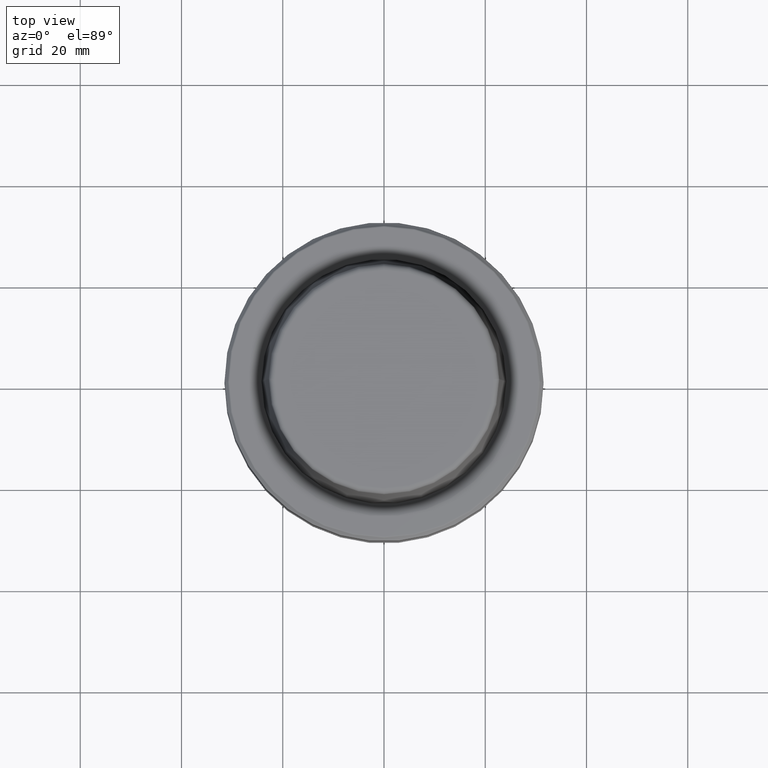
[diagram: clean part render]
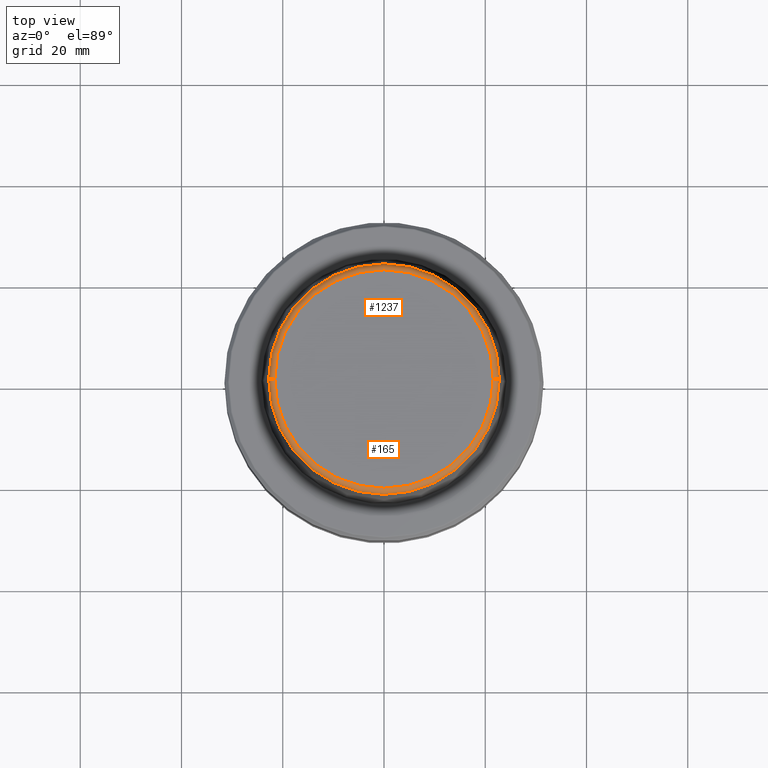
[diagram: same view with one multi-face feature highlighted, each face labeled with its STEP entity id]
A machine part, top view. The highlighted faces form ONE feature: a constant-radius fillet chain: 2 tangent blend faces with common blend radius 1.2 mm. The faces share edges in the B-rep.
Their STEP definitions:
[1] entity #165 (Torus):
#165 = ADVANCED_FACE ( 'NONE', ( #1682 ), #337, .T. ) ;
#244 = DIRECTION ( 'NONE',  ( -0.0000000000000000000, -0.0000000000000000000, 1.000000000000000000 ) ) ;
#311 = CARTESIAN_POINT ( 'NONE',  ( 0.0000000000000000000, 0.0000000000000000000, 30.69999999999999200 ) ) ;
#337 = TOROIDAL_SURFACE ( 'NONE', #1630, 21.58108272732117100, 1.200000000000003100 ) ;
#540 = CARTESIAN_POINT ( 'NONE',  ( 21.58108272732117100, 0.0000000000000000000, 31.89999999999999900 ) ) ;
#573 = DIRECTION ( 'NONE',  ( 1.000000000000000000, 0.0000000000000000000, 0.0000000000000000000 ) ) ;
#700 = ORIENTED_EDGE ( 'NONE', *, *, #2522, .T. ) ;
#776 = EDGE_CURVE ( 'NONE', #2573, #2421, #2233, .T. ) ;
#778 = CARTESIAN_POINT ( 'NONE',  ( 0.0000000000000000000, 0.0000000000000000000, 31.89999999999999900 ) ) ;
#947 = VERTEX_POINT ( 'NONE', #2400 ) ;
#1133 = AXIS2_PLACEMENT_3D ( 'NONE', #2229, #244, #2702 ) ;
#1223 = EDGE_CURVE ( 'NONE', #1614, #947, #1708, .T. ) ;
#1274 = ORIENTED_EDGE ( 'NONE', *, *, #2535, .F. ) ;
#1335 = DIRECTION ( 'NONE',  ( -0.0000000000000000000, -0.0000000000000000000, 1.000000000000000000 ) ) ;
#1511 = EDGE_LOOP ( 'NONE', ( #1274, #2693, #700, #2277 ) ) ;
#1513 = CIRCLE ( 'NONE', #1792, 1.200000000000003100 ) ;
#1515 = AXIS2_PLACEMENT_3D ( 'NONE', #2307, #2374, #2326 ) ;
#1614 = VERTEX_POINT ( 'NONE', #2753 ) ;
#1630 = AXIS2_PLACEMENT_3D ( 'NONE', #311, #1335, #2634 ) ;
#1682 = FACE_OUTER_BOUND ( 'NONE', #1511, .T. ) ;
#1708 = CIRCLE ( 'NONE', #1133, 22.77957961851797100 ) ;
#1775 = CARTESIAN_POINT ( 'NONE',  ( -21.58108272732117100, 2.716307157494421400E-015, 31.89999999999999900 ) ) ;
#1792 = AXIS2_PLACEMENT_3D ( 'NONE', #1989, #2180, #2178 ) ;
#1989 = CARTESIAN_POINT ( 'NONE',  ( -21.58108272732117100, 2.642920388414810300E-015, 30.69999999999999200 ) ) ;
#2065 = DIRECTION ( 'NONE',  ( -0.0000000000000000000, -0.0000000000000000000, 1.000000000000000000 ) ) ;
#2098 = AXIS2_PLACEMENT_3D ( 'NONE', #778, #2065, #573 ) ;
#2178 = DIRECTION ( 'NONE',  ( -1.000000000000000000, 1.224646799147353200E-016, 0.0000000000000000000 ) ) ;
#2180 = DIRECTION ( 'NONE',  ( 1.224646799147353200E-016, 1.000000000000000000, 0.0000000000000000000 ) ) ;
#2229 = CARTESIAN_POINT ( 'NONE',  ( 0.0000000000000000000, 0.0000000000000000000, 30.76004333261571900 ) ) ;
#2233 = CIRCLE ( 'NONE', #2098, 21.58108272732117100 ) ;
#2277 = ORIENTED_EDGE ( 'NONE', *, *, #776, .F. ) ;
#2307 = CARTESIAN_POINT ( 'NONE',  ( 21.58108272732117100, 0.0000000000000000000, 30.69999999999999200 ) ) ;
#2326 = DIRECTION ( 'NONE',  ( 0.0000000000000000000, 0.0000000000000000000, -1.000000000000000000 ) ) ;
#2374 = DIRECTION ( 'NONE',  ( 0.0000000000000000000, -1.000000000000000000, 0.0000000000000000000 ) ) ;
#2400 = CARTESIAN_POINT ( 'NONE',  ( 22.77957961851797100, 2.874852597157249900E-015, 30.76004333261571900 ) ) ;
#2421 = VERTEX_POINT ( 'NONE', #540 ) ;
#2522 = EDGE_CURVE ( 'NONE', #947, #2421, #2687, .T. ) ;
#2535 = EDGE_CURVE ( 'NONE', #1614, #2573, #1513, .T. ) ;
#2573 = VERTEX_POINT ( 'NONE', #1775 ) ;
#2634 = DIRECTION ( 'NONE',  ( 1.000000000000000000, 0.0000000000000000000, 0.0000000000000000000 ) ) ;
#2687 = CIRCLE ( 'NONE', #1515, 1.200000000000003100 ) ;
#2693 = ORIENTED_EDGE ( 'NONE', *, *, #1223, .T. ) ;
#2702 = DIRECTION ( 'NONE',  ( 1.000000000000000000, 0.0000000000000000000, 0.0000000000000000000 ) ) ;
#2753 = CARTESIAN_POINT ( 'NONE',  ( -22.77957961851797100, 0.0000000000000000000, 30.76004333261571900 ) ) ;
[2] entity #1237 (Torus):
#72 = FACE_OUTER_BOUND ( 'NONE', #2058, .T. ) ;
#191 = AXIS2_PLACEMENT_3D ( 'NONE', #615, #1882, #391 ) ;
#391 = DIRECTION ( 'NONE',  ( 1.000000000000000000, 0.0000000000000000000, 0.0000000000000000000 ) ) ;
#523 = EDGE_CURVE ( 'NONE', #947, #1614, #1407, .T. ) ;
#540 = CARTESIAN_POINT ( 'NONE',  ( 21.58108272732117100, 0.0000000000000000000, 31.89999999999999900 ) ) ;
#604 = ORIENTED_EDGE ( 'NONE', *, *, #647, .F. ) ;
#615 = CARTESIAN_POINT ( 'NONE',  ( 0.0000000000000000000, 0.0000000000000000000, 31.89999999999999900 ) ) ;
#647 = EDGE_CURVE ( 'NONE', #2421, #2573, #1400, .T. ) ;
#696 = ORIENTED_EDGE ( 'NONE', *, *, #2535, .T. ) ;
#947 = VERTEX_POINT ( 'NONE', #2400 ) ;
#1143 = CARTESIAN_POINT ( 'NONE',  ( 0.0000000000000000000, 0.0000000000000000000, 30.76004333261571900 ) ) ;
#1237 = ADVANCED_FACE ( 'NONE', ( #72 ), #1632, .T. ) ;
#1242 = AXIS2_PLACEMENT_3D ( 'NONE', #1143, #1838, #2380 ) ;
#1267 = ORIENTED_EDGE ( 'NONE', *, *, #2522, .F. ) ;
#1400 = CIRCLE ( 'NONE', #191, 21.58108272732117100 ) ;
#1407 = CIRCLE ( 'NONE', #1242, 22.77957961851797100 ) ;
#1513 = CIRCLE ( 'NONE', #1792, 1.200000000000003100 ) ;
#1515 = AXIS2_PLACEMENT_3D ( 'NONE', #2307, #2374, #2326 ) ;
#1563 = DIRECTION ( 'NONE',  ( 1.000000000000000000, 0.0000000000000000000, 0.0000000000000000000 ) ) ;
#1614 = VERTEX_POINT ( 'NONE', #2753 ) ;
#1632 = TOROIDAL_SURFACE ( 'NONE', #1695, 21.58108272732117100, 1.200000000000003100 ) ;
#1695 = AXIS2_PLACEMENT_3D ( 'NONE', #2437, #2383, #1563 ) ;
#1775 = CARTESIAN_POINT ( 'NONE',  ( -21.58108272732117100, 2.716307157494421400E-015, 31.89999999999999900 ) ) ;
#1792 = AXIS2_PLACEMENT_3D ( 'NONE', #1989, #2180, #2178 ) ;
#1838 = DIRECTION ( 'NONE',  ( -0.0000000000000000000, -0.0000000000000000000, 1.000000000000000000 ) ) ;
#1882 = DIRECTION ( 'NONE',  ( -0.0000000000000000000, -0.0000000000000000000, 1.000000000000000000 ) ) ;
#1901 = ORIENTED_EDGE ( 'NONE', *, *, #523, .T. ) ;
#1989 = CARTESIAN_POINT ( 'NONE',  ( -21.58108272732117100, 2.642920388414810300E-015, 30.69999999999999200 ) ) ;
#2058 = EDGE_LOOP ( 'NONE', ( #1901, #696, #604, #1267 ) ) ;
#2178 = DIRECTION ( 'NONE',  ( -1.000000000000000000, 1.224646799147353200E-016, 0.0000000000000000000 ) ) ;
#2180 = DIRECTION ( 'NONE',  ( 1.224646799147353200E-016, 1.000000000000000000, 0.0000000000000000000 ) ) ;
#2307 = CARTESIAN_POINT ( 'NONE',  ( 21.58108272732117100, 0.0000000000000000000, 30.69999999999999200 ) ) ;
#2326 = DIRECTION ( 'NONE',  ( 0.0000000000000000000, 0.0000000000000000000, -1.000000000000000000 ) ) ;
#2374 = DIRECTION ( 'NONE',  ( 0.0000000000000000000, -1.000000000000000000, 0.0000000000000000000 ) ) ;
#2380 = DIRECTION ( 'NONE',  ( 1.000000000000000000, 0.0000000000000000000, 0.0000000000000000000 ) ) ;
#2383 = DIRECTION ( 'NONE',  ( -0.0000000000000000000, -0.0000000000000000000, 1.000000000000000000 ) ) ;
#2400 = CARTESIAN_POINT ( 'NONE',  ( 22.77957961851797100, 2.874852597157249900E-015, 30.76004333261571900 ) ) ;
#2421 = VERTEX_POINT ( 'NONE', #540 ) ;
#2437 = CARTESIAN_POINT ( 'NONE',  ( 0.0000000000000000000, 0.0000000000000000000, 30.69999999999999200 ) ) ;
#2522 = EDGE_CURVE ( 'NONE', #947, #2421, #2687, .T. ) ;
#2535 = EDGE_CURVE ( 'NONE', #1614, #2573, #1513, .T. ) ;
#2573 = VERTEX_POINT ( 'NONE', #1775 ) ;
#2687 = CIRCLE ( 'NONE', #1515, 1.200000000000003100 ) ;
#2753 = CARTESIAN_POINT ( 'NONE',  ( -22.77957961851797100, 0.0000000000000000000, 30.76004333261571900 ) ) ;